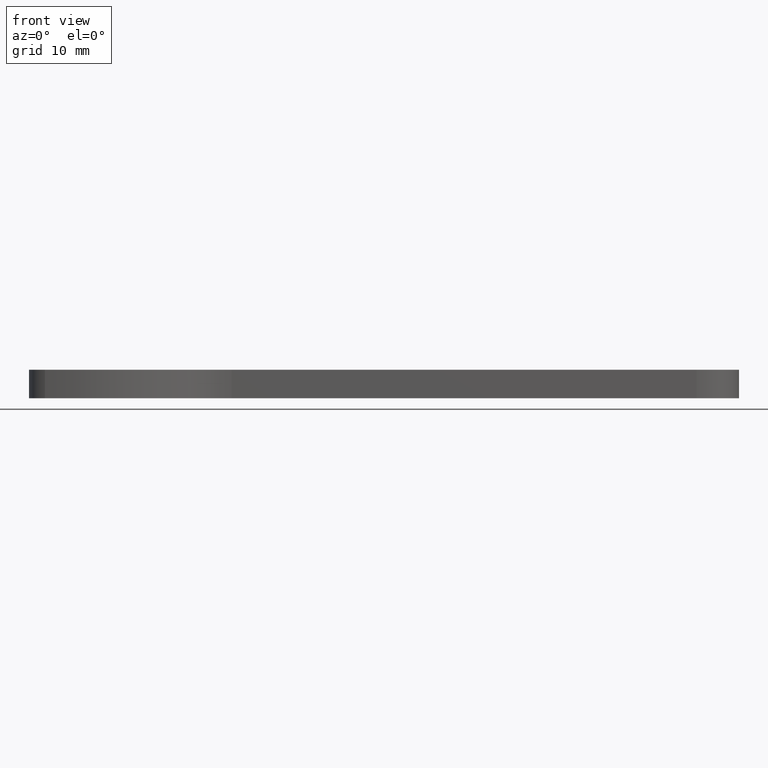
[diagram: clean part render]
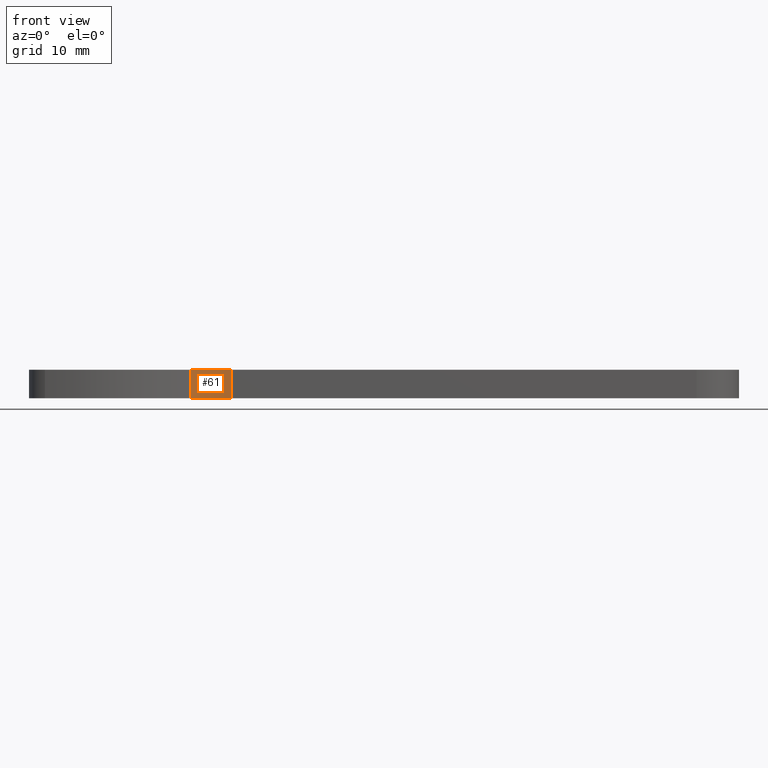
[diagram: same view with one face highlighted and labeled with its STEP entity id]
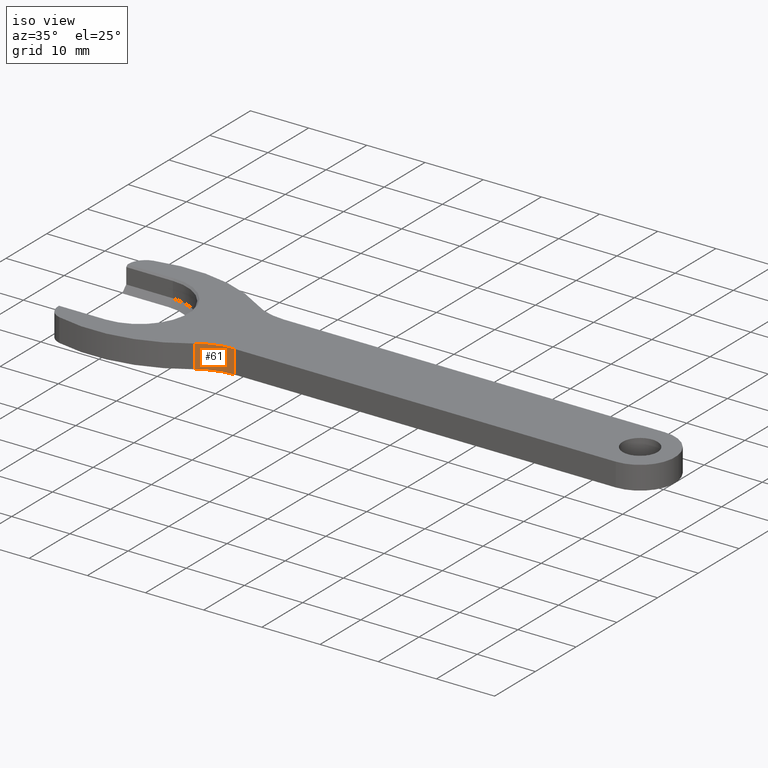
[diagram: same view with one face highlighted and labeled with its STEP entity id]
A machine part, front view. The second image highlights one B-rep face of the part: STEP entity #61.
A second angle (iso view) of the same face is appended — the face is thin or edge-on in the first view.
In plain terms, the highlighted cylindrical surface (partial cylindrical patch) has radius 10 mm, axis along (-0, -0, 1).
Its self-contained STEP definition (entity closure, byte-faithful):
#61 = ADVANCED_FACE( '', ( #132 ), #133, .F. );
#132 = FACE_OUTER_BOUND( '', #211, .T. );
#133 = CYLINDRICAL_SURFACE( '', #212, 10.0000000000000 );
#211 = EDGE_LOOP( '', ( #329, #330, #331, #332 ) );
#212 = AXIS2_PLACEMENT_3D( '', #333, #334, #335 );
#329 = ORIENTED_EDGE( '', *, *, #503, .F. );
#330 = ORIENTED_EDGE( '', *, *, #510, .F. );
#331 = ORIENTED_EDGE( '', *, *, #511, .T. );
#332 = ORIENTED_EDGE( '', *, *, #473, .T. );
#333 = CARTESIAN_POINT( '', ( 20.5327232297559, -16.0000000000000, 2.00000000000000 ) );
#334 = DIRECTION( '', ( -0.000000000000000, -0.000000000000000, 1.00000000000000 ) );
#335 = DIRECTION( '', ( -1.00000000000000, 0.000000000000000, 0.000000000000000 ) );
#473 = EDGE_CURVE( '', #551, #556, #558, .T. );
#503 = EDGE_CURVE( '', #606, #556, #608, .T. );
#510 = EDGE_CURVE( '', #619, #606, #620, .T. );
#511 = EDGE_CURVE( '', #619, #551, #621, .T. );
#551 = VERTEX_POINT( '', #670 );
#556 = VERTEX_POINT( '', #676 );
#558 = LINE( '', #678, #679 );
#606 = VERTEX_POINT( '', #741 );
#608 = CIRCLE( '', #744, 10.0000000000000 );
#619 = VERTEX_POINT( '', #759 );
#620 = LINE( '', #760, #761 );
#621 = CIRCLE( '', #762, 10.0000000000000 );
#670 = CARTESIAN_POINT( '', ( 14.8090880212542, -7.80000000000000, 2.00000000000000 ) );
#676 = CARTESIAN_POINT( '', ( 14.8090880212542, -7.80000000000000, -2.00000000000000 ) );
#678 = CARTESIAN_POINT( '', ( 14.8090880212542, -7.80000000000000, 2.00000000000000 ) );
#679 = VECTOR( '', #833, 1000.00000000000 );
#741 = CARTESIAN_POINT( '', ( 20.5327232297559, -6.00000000000000, -2.00000000000000 ) );
#744 = AXIS2_PLACEMENT_3D( '', #876, #877, #878 );
#759 = CARTESIAN_POINT( '', ( 20.5327232297559, -6.00000000000000, 2.00000000000000 ) );
#760 = CARTESIAN_POINT( '', ( 20.5327232297559, -6.00000000000000, 2.00000000000000 ) );
#761 = VECTOR( '', #883, 1000.00000000000 );
#762 = AXIS2_PLACEMENT_3D( '', #884, #885, #886 );
#833 = DIRECTION( '', ( 0.000000000000000, 0.000000000000000, -1.00000000000000 ) );
#876 = CARTESIAN_POINT( '', ( 20.5327232297559, -16.0000000000000, -2.00000000000000 ) );
#877 = DIRECTION( '', ( 0.000000000000000, 0.000000000000000, 1.00000000000000 ) );
#878 = DIRECTION( '', ( 1.00000000000000, 0.000000000000000, 0.000000000000000 ) );
#883 = DIRECTION( '', ( 0.000000000000000, 0.000000000000000, -1.00000000000000 ) );
#884 = CARTESIAN_POINT( '', ( 20.5327232297559, -16.0000000000000, 2.00000000000000 ) );
#885 = DIRECTION( '', ( 0.000000000000000, 0.000000000000000, 1.00000000000000 ) );
#886 = DIRECTION( '', ( 1.00000000000000, 0.000000000000000, 0.000000000000000 ) );